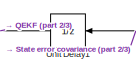
[diagram: root canvas - part 1/3, top center region]
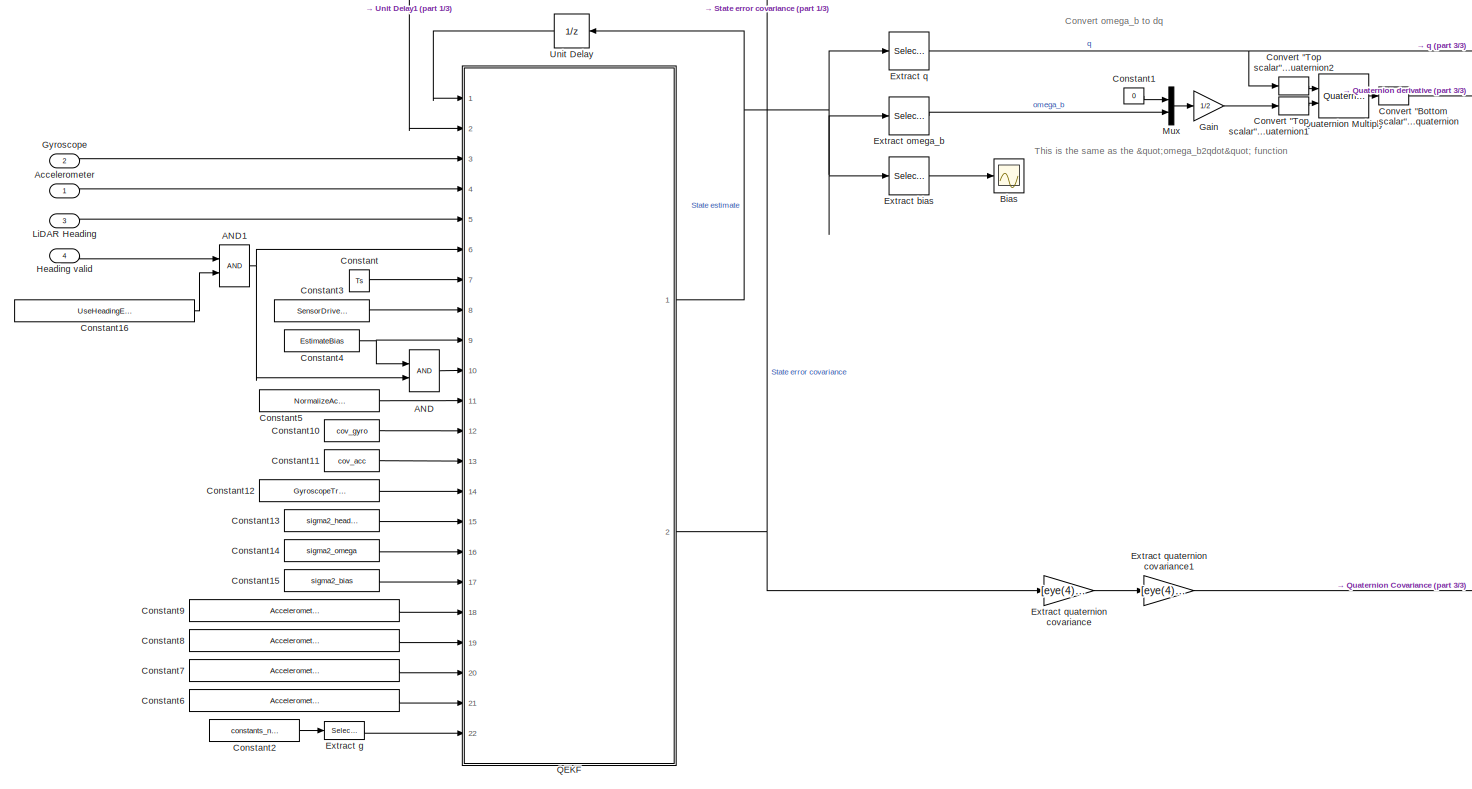
[diagram: root canvas - part 2/3, most of the canvas]
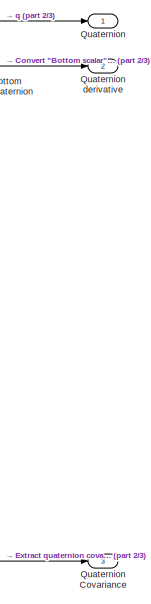
[diagram: root canvas - part 3/3, middle right region]
MODEL slx_001e95f21cf0
KIND model
CONFIG AbsTol = auto
CONFIG EnableMultiTasking = off
CONFIG FixedStep = auto
CONFIG InitFcn = Constants_Kugle\nConstants_nominal\nParameters_Estimators\nParameters_Simulation
CONFIG MaxStep = auto
CONFIG MinStep = auto
CONFIG PreLoadFcn = modelDir = fileparts(get_param(bdroot, 'FileName'));\naddpath(fullfile(modelDir,'../../Parameters'));\naddpath(fullfile(modelDir,'../../Estimators/QEKF'));\n\nConstants_Kugle\nConstants_nominal\nParameters_Estimators\nParameters_Simulation
CONFIG RelTol = 1e-3
CONFIG SampleTimeConstraint = Unconstrained
CONFIG Solver = VariableStepAuto
CONFIG SolverName = VariableStepAuto
CONFIG StartTime = 0.0
CONFIG StopTime = 10.0
BLOCK [Logic] AND
  AllPortsSameDT = off
  IconShape = distinctive
  OutDataTypeStr = boolean
  Ports = [2, 1]
BLOCK [Logic] AND1
  AllPortsSameDT = off
  IconShape = distinctive
  OutDataTypeStr = boolean
  Ports = [2, 1]
BLOCK [Inport] Accelerometer
  IconDisplay = Port number
BLOCK [Scope] Bias
  Floating = off
  NumInputPorts = 1
  Ports = [1]
  ScopeSpecificationString = Simulink.scopes.TimeScopeBlockCfg('CurrentConfiguration', extmgr.ConfigurationSet(extmgr.Configuration('Core','General UI',true),extmgr.Configuration('Core','Source UI',true),extmgr.Configuration('Sources','WiredSimulink',true,'DataLoggingVariableName','ScopeData1'),extmgr.Configuration('Visuals','Time Domain',true,'SerializedDisplays',{struct('MinYLimReal','-0.00036','MaxYLimReal','0.0004','YLabe...<+1552ch>
BLOCK [Constant] Constant
  Value = Ts
BLOCK [Constant] Constant1
  Value = 0
BLOCK [Constant] Constant10
  Value = cov_gyro
BLOCK [Constant] Constant11
  Value = cov_acc
BLOCK [Constant] Constant12
  Value = GyroscopeTrustFactor
BLOCK [Constant] Constant13
  Value = sigma2_heading
BLOCK [Constant] Constant14
  Value = sigma2_omega
BLOCK [Constant] Constant15
  Value = sigma2_bias
BLOCK [Constant] Constant16
  Value = UseHeadingEstimateFromXsensIMU
BLOCK [Constant] Constant2
  Value = constants_nominal
BLOCK [Constant] Constant3
  Value = SensorDrivenQEKF
BLOCK [Constant] Constant4
  Value = EstimateBias
BLOCK [Constant] Constant5
  Value = NormalizeAccelerometer
BLOCK [Constant] Constant6
  Value = AccelerometerVibration_MaxVaryFactor
BLOCK [Constant] Constant7
  Value = AccelerometerVibration_CovarianceVaryFactor
BLOCK [Constant] Constant8
  Value = AccelerometerVibration_NormLPFtau
BLOCK [Constant] Constant9
  Value = AccelerometerVibration_DetectionEnabled
BLOCK [Selector] Convert "Bottom scalar" quaternion to "Top scalar" quaternion
  IndexOptions = Index vector (dialog)
  Indices = [4 1 2 3]
  InputPortWidth = 4
  OutputSizes = 1
  Ports = [1, 1]
BLOCK [Selector] Convert "Top scalar" quaternion to "Bottom scalar" quaternion1
  IndexOptions = Index vector (dialog)
  Indices = [2 3 4 1]
  InputPortWidth = 4
  OutputSizes = 1
  Ports = [1, 1]
BLOCK [Selector] Convert "Top scalar" quaternion to "Bottom scalar" quaternion2
  IndexOptions = Index vector (dialog)
  Indices = [2 3 4 1]
  InputPortWidth = 4
  OutputSizes = 1
  Ports = [1, 1]
BLOCK [Selector] Extract bias
  IndexOptions = Index vector (dialog)
  Indices = [8 9 10]
  InputPortWidth = 10
  OutputSizes = 1
  Ports = [1, 1]
BLOCK [Selector] Extract g
  IndexOptions = Index vector (dialog)
  Indices = [13]
  InputPortWidth = 13
  OutputSizes = 1
  Ports = [1, 1]
BLOCK [Selector] Extract omega_b
  IndexOptions = Index vector (dialog)
  Indices = [5 6 7]
  InputPortWidth = 10
  OutputSizes = 1
  Ports = [1, 1]
BLOCK [Selector] Extract q
  IndexOptions = Index vector (dialog)
  Indices = [1 2 3 4]
  InputPortWidth = 10
  OutputSizes = 1
  Ports = [1, 1]
BLOCK [Gain] Extract quaternion covariance
  Gain = [eye(4),zeros(4,6)]
  Multiplication = Matrix(K*u)
  OutDataTypeStr = Inherit: Inherit via internal rule
  ParamDataTypeStr = Inherit: Inherit via internal rule
  SaturateOnIntegerOverflow = off
BLOCK [Gain] Extract quaternion covariance1
  Gain = [eye(4),zeros(4,6)]'
  Multiplication = Matrix(u*K)
  OutDataTypeStr = Inherit: Inherit via internal rule
  ParamDataTypeStr = Inherit: Inherit via internal rule
  SaturateOnIntegerOverflow = off
BLOCK [Gain] Gain
  Gain = 1/2
  OutDataTypeStr = Inherit: Inherit via internal rule
  ParamDataTypeStr = Inherit: Inherit via internal rule
  SaturateOnIntegerOverflow = off
BLOCK [Inport] Gyroscope
  IconDisplay = Port number
  Port = 2
BLOCK [Inport] Heading valid
  IconDisplay = Port number
  Port = 4
BLOCK [Inport] LiDAR Heading
  IconDisplay = Port number
  Port = 3
BLOCK [Mux] Mux
  DisplayOption = bar
  Inputs = 2
  Ports = [2, 1]
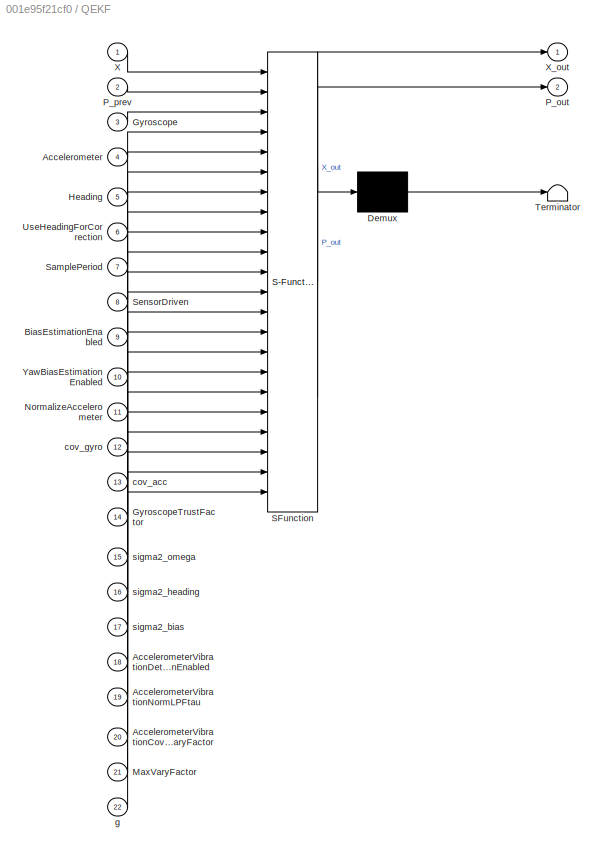
BLOCK [SubSystem] QEKF
  ErrorFcn = Stateflow.Translate.translate
  PermitHierarchicalResolution = ExplicitOnly
  Ports = [22, 2]
  RequestExecContextInheritance = off
  SFBlockType = MATLAB Function
  TreatAsAtomicUnit = on
BLOCK [Demux] QEKF/ Demux 
  Outputs = 1
  Ports = [1, 1]
BLOCK [S-Function] QEKF/ SFunction 
  EnableBusSupport = on
  FunctionName = sf_sfun
  PortCounts = [22 3]
  Ports = [22, 3]
  SFcnIsStateOwnerBlock = off
  SFunctionDeploymentMode = off
  Tag = Stateflow S-Function QEKF_ 29
BLOCK [Terminator] QEKF/ Terminator 
BLOCK [Inport] QEKF/Accelerometer
  IconDisplay = Port number
  Port = 4
BLOCK [Inport] QEKF/AccelerometerVibrationCovarianceVaryFactor
  IconDisplay = Port number
  Port = 20
BLOCK [Inport] QEKF/AccelerometerVibrationDetectionEnabled
  IconDisplay = Port number
  Port = 18
BLOCK [Inport] QEKF/AccelerometerVibrationNormLPFtau
  IconDisplay = Port number
  Port = 19
BLOCK [Inport] QEKF/BiasEstimationEnabled
  IconDisplay = Port number
  Port = 9
BLOCK [Inport] QEKF/Gyroscope
  IconDisplay = Port number
  Port = 3
BLOCK [Inport] QEKF/GyroscopeTrustFactor
  IconDisplay = Port number
  Port = 14
BLOCK [Inport] QEKF/Heading
  IconDisplay = Port number
  Port = 5
BLOCK [Inport] QEKF/MaxVaryFactor
  IconDisplay = Port number
  Port = 21
BLOCK [Inport] QEKF/NormalizeAccelerometer
  IconDisplay = Port number
  Port = 11
BLOCK [Outport] QEKF/P_out
  IconDisplay = Port number
  Port = 2
BLOCK [Inport] QEKF/P_prev
  IconDisplay = Port number
  Port = 2
BLOCK [Inport] QEKF/SamplePeriod
  IconDisplay = Port number
  Port = 7
BLOCK [Inport] QEKF/SensorDriven
  IconDisplay = Port number
  Port = 8
BLOCK [Inport] QEKF/UseHeadingForCorrection
  IconDisplay = Port number
  Port = 6
BLOCK [Inport] QEKF/X
  IconDisplay = Port number
BLOCK [Outport] QEKF/X_out
  IconDisplay = Port number
BLOCK [Inport] QEKF/YawBiasEstimationEnabled
  IconDisplay = Port number
  Port = 10
BLOCK [Inport] QEKF/cov_acc
  IconDisplay = Port number
  Port = 13
BLOCK [Inport] QEKF/cov_gyro
  IconDisplay = Port number
  Port = 12
BLOCK [Inport] QEKF/g
  IconDisplay = Port number
  Port = 22
BLOCK [Inport] QEKF/sigma2_bias
  IconDisplay = Port number
  Port = 17
BLOCK [Inport] QEKF/sigma2_heading
  IconDisplay = Port number
  Port = 16
BLOCK [Inport] QEKF/sigma2_omega
  IconDisplay = Port number
  Port = 15
BLOCK [Outport] Quaternion
  IconDisplay = Port number
BLOCK [Outport] Quaternion Covariance
  IconDisplay = Port number
  Port = 3
BLOCK [Reference] Quaternion Multiply  REF=qlib/Quaternion  (lib defined in mdl_ab4d631060dc, slx_f623738634e3)
Multiply
  Ports = [2, 1]
  SourceBlock = qlib/Quaternion\nMultiply
  SourceType = Quaternion Multiply
BLOCK [Outport] Quaternion derivative
  IconDisplay = Port number
  Port = 2
BLOCK [UnitDelay] Unit Delay
  InitialCondition = [est_q_init; zeros(3,1); zeros(3,1)]
  InputProcessing = Elements as channels (sample based)
  SampleTime = Ts
BLOCK [UnitDelay] Unit Delay1
  InitialCondition = diag(QEKF_P_init_diagonal)
  InputProcessing = Elements as channels (sample based)
  SampleTime = Ts
ANNOTATION (root): This is the same as the "omega_b2qdot" function
ANNOTATION (root): Convert omega_b to dq
NET AND1:1 -> AND:2, QEKF:6
LINE AND:1 -> QEKF:10
LINE Accelerometer:1 -> QEKF:4
LINE Constant10:1 -> QEKF:12
LINE Constant11:1 -> QEKF:13
LINE Constant12:1 -> QEKF:14
LINE Constant13:1 -> QEKF:15
LINE Constant14:1 -> QEKF:16
LINE Constant15:1 -> QEKF:17
LINE Constant16:1 -> AND1:2
LINE Constant1:1 -> Mux:1
LINE Constant2:1 -> Extract g:1
LINE Constant3:1 -> QEKF:8
NET Constant4:1 -> AND:1, QEKF:9
LINE Constant5:1 -> QEKF:11
LINE Constant6:1 -> QEKF:21
LINE Constant7:1 -> QEKF:20
LINE Constant8:1 -> QEKF:19
LINE Constant9:1 -> QEKF:18
LINE Constant:1 -> QEKF:7
LINE Convert "Bottom scalar" quaternion to "Top scalar" quaternion:1 -> Quaternion derivative:1
LINE Convert "Top scalar" quaternion to "Bottom scalar" quaternion1:1 -> Quaternion Multiply:2
LINE Convert "Top scalar" quaternion to "Bottom scalar" quaternion2:1 -> Quaternion Multiply:1
LINE Extract bias:1 -> Bias:1
LINE Extract g:1 -> QEKF:22
LINE Extract omega_b:1 -> Mux:2
NET Extract q:1 -> Convert "Top scalar" quaternion to "Bottom scalar" quaternion2:1, Quaternion:1
LINE Extract quaternion covariance1:1 -> Quaternion Covariance:1
LINE Extract quaternion covariance:1 -> Extract quaternion covariance1:1
LINE Gain:1 -> Convert "Top scalar" quaternion to "Bottom scalar" quaternion1:1
LINE Gyroscope:1 -> QEKF:3
LINE Heading valid:1 -> AND1:1
LINE LiDAR Heading:1 -> QEKF:5
LINE Mux:1 -> Gain:1
NET QEKF:1 -> Extract bias:1, Extract omega_b:1, Extract q:1, Unit Delay:1
NET QEKF:2 -> Extract quaternion covariance:1, Unit Delay1:1
LINE Quaternion Multiply:1 -> Convert "Bottom scalar" quaternion to "Top scalar" quaternion:1
LINE Unit Delay1:1 -> QEKF:2
LINE Unit Delay:1 -> QEKF:1
note: NET lines group one-source signal fan-out (src -> all destinations, sorted); 1:1 wires keep LINE
CHART QEKF states=1 transitions=1
  STATE_LABEL 'eML_blk_kernel()'
  STATE_LABEL 'SCRIPT:\nfunction [X_out, P_out] = QEKF_(X, P_prev, Gyroscope, Accelerometer, Heading, UseHeadingForCorrection, SamplePeriod, SensorDriven, BiasEstimationEnabled, YawBiasEstimationEnabled, NormalizeAccelerometer, cov_gyro, cov_acc, GyroscopeTrustFactor, sigma2_omega, sigma2_heading, sigma2_bias, AccelerometerVibrationDetectionEnabled, AccelerometerVibrationNormLPFtau, AccelerometerVibrationCovarian...<+640ch>'
